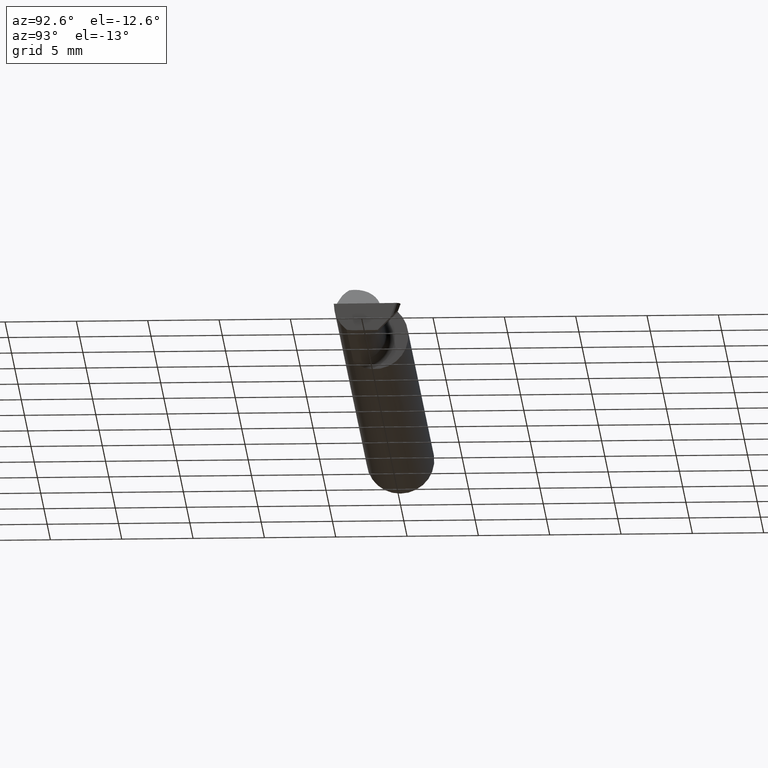
[diagram: clean part render]
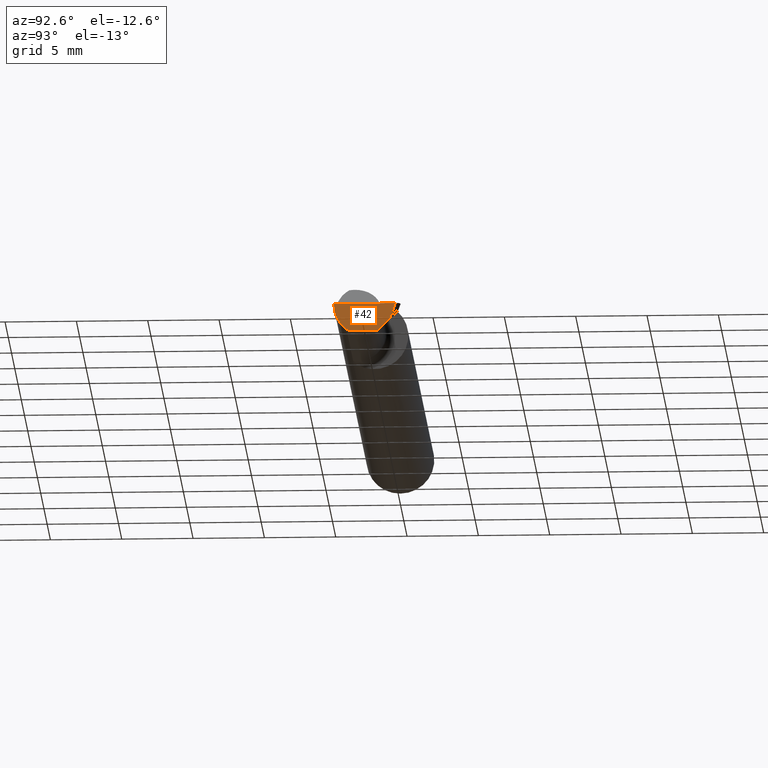
[diagram: same view with one face highlighted and labeled with its STEP entity id]
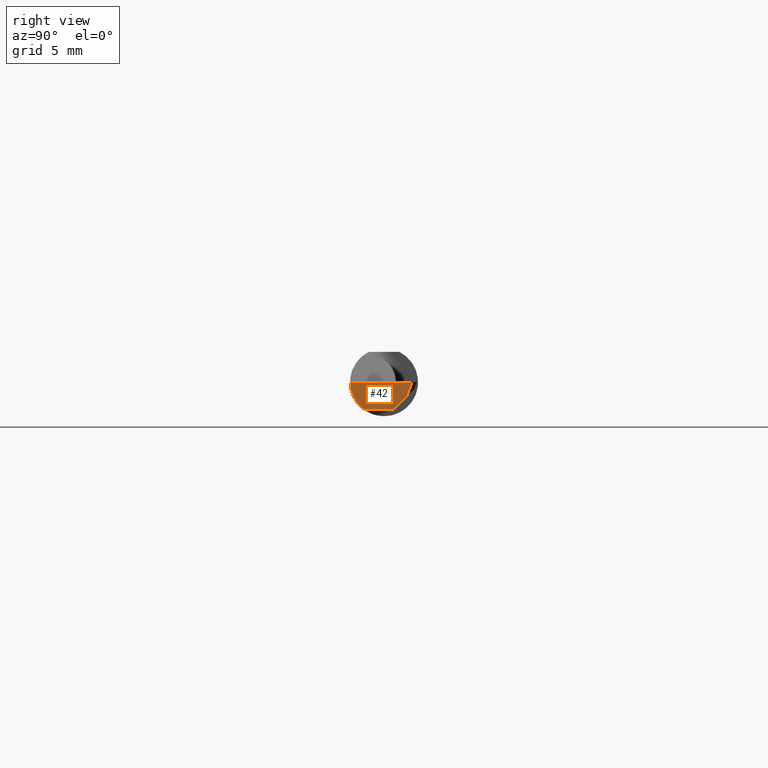
[diagram: same view with one face highlighted and labeled with its STEP entity id]
A machine part, auxiliary view. The second image highlights one B-rep face of the part: STEP entity #42.
A second angle (right view) of the same face is appended — the face is thin or edge-on in the first view.
In plain terms, the highlighted planar face has unit normal (-0.9992, 0.0174, 0.0349).
Its self-contained STEP definition (entity closure, byte-faithful):
#3 = AXIS2_PLACEMENT_3D ( 'NONE', #314, #685, #201 ) ;
#9 = FACE_OUTER_BOUND ( 'NONE', #390, .T. ) ;
#42 = ADVANCED_FACE ( 'NONE', ( #9 ), #551, .F. ) ;
#87 = CARTESIAN_POINT ( 'NONE',  ( 1.996507080450274474, 0.02748456554894273055, -0.07500000000000002498 ) ) ;
#99 = CARTESIAN_POINT ( 'NONE',  ( 1.995069675717878299, -0.05810704225352107677, -0.07337936794867833123 ) ) ;
#104 = CARTESIAN_POINT ( 'NONE',  ( 1.995192704155888785, -0.04781600192481515188, -0.07500000000000003886 ) ) ;
#115 = CARTESIAN_POINT ( 'NONE',  ( 1.995069675717878299, -0.05810704225352107677, -0.07337936794867833123 ) ) ;
#126 = CARTESIAN_POINT ( 'NONE',  ( 1.999998056073120534, 0.07741385304294044756, 0.000000000000000000 ) ) ;
#133 = VECTOR ( 'NONE', #671, 39.37007874015747433 ) ;
#159 = CARTESIAN_POINT ( 'NONE',  ( 1.999986840374342822, 0.07677130609030106967, 0.000000000000000000 ) ) ;
#169 = CARTESIAN_POINT ( 'NONE',  ( 1.995283749808152374, -0.04259999999999980469, -0.07500000000000002498 ) ) ;
#171 = ORIENTED_EDGE ( 'NONE', *, *, #320, .F. ) ;
#182 = EDGE_CURVE ( 'NONE', #543, #346, #209, .T. ) ;
#194 = LINE ( 'NONE', #739, #681 ) ;
#197 = CARTESIAN_POINT ( 'NONE',  ( 1.997012998164632958, -0.09360000000000001652, 0.000000000000000000 ) ) ;
#200 = CARTESIAN_POINT ( 'NONE',  ( 1.995996405735428469, -0.09359999999999997489, -0.02910696448121681199 ) ) ;
#201 = DIRECTION ( 'NONE',  ( 0.03490480639812536257, 0.000000000000000000, 0.9993906415863165194 ) ) ;
#209 = LINE ( 'NONE', #588, #733 ) ;
#210 = VERTEX_POINT ( 'NONE', #766 ) ;
#223 = CARTESIAN_POINT ( 'NONE',  ( 1.996701111497402481, 0.03118878038446752654, -0.07129578516447518388 ) ) ;
#247 = EDGE_CURVE ( 'NONE', #805, #346, #552, .T. ) ;
#270 = VERTEX_POINT ( 'NONE', #159 ) ;
#295 = VECTOR ( 'NONE', #781, 39.37007874015748143 ) ;
#302 =( BOUNDED_CURVE ( )  B_SPLINE_CURVE ( 3, ( #753, #750, #200, #197 ),
 .UNSPECIFIED., .F., .F. ) 
 B_SPLINE_CURVE_WITH_KNOTS ( ( 4, 4 ),
 ( 0.2063001339125776490, 1.107331509589607910 ),
 .UNSPECIFIED. ) 
 CURVE ( )  GEOMETRIC_REPRESENTATION_ITEM ( )  RATIONAL_B_SPLINE_CURVE ( ( 1.000000000000000000, 0.9334817841311873199, 0.9334817841311873199, 1.000000000000000000 ) ) 
 REPRESENTATION_ITEM ( '' )  );
#305 = LINE ( 'NONE', #126, #133 ) ;
#314 = CARTESIAN_POINT ( 'NONE',  ( 1.999998056073120534, 0.07741385304294044756, 0.000000000000000000 ) ) ;
#320 = EDGE_CURVE ( 'NONE', #210, #543, #716, .T. ) ;
#330 = ORIENTED_EDGE ( 'NONE', *, *, #495, .T. ) ;
#346 = VERTEX_POINT ( 'NONE', #169 ) ;
#390 = EDGE_LOOP ( 'NONE', ( #171, #330, #694, #477, #397, #524 ) ) ;
#397 = ORIENTED_EDGE ( 'NONE', *, *, #247, .T. ) ;
#461 = DIRECTION ( 'NONE',  ( -0.01745240643727441823, -0.9998476951563912696, 0.000000000000000000 ) ) ;
#474 = EDGE_CURVE ( 'NONE', #270, #585, #305, .T. ) ;
#477 = ORIENTED_EDGE ( 'NONE', *, *, #600, .F. ) ;
#495 = EDGE_CURVE ( 'NONE', #210, #270, #194, .T. ) ;
#496 = CARTESIAN_POINT ( 'NONE',  ( 1.997012998164632958, -0.09360000000000001652, 0.000000000000000000 ) ) ;
#524 = ORIENTED_EDGE ( 'NONE', *, *, #182, .F. ) ;
#543 = VERTEX_POINT ( 'NONE', #87 ) ;
#551 = PLANE ( 'NONE',  #3 ) ;
#552 =( BOUNDED_CURVE ( )  B_SPLINE_CURVE ( 3, ( #99, #647, #104, #596 ),
 .UNSPECIFIED., .F., .F. ) 
 B_SPLINE_CURVE_WITH_KNOTS ( ( 4, 4 ),
 ( 0.2552020043920334436, 0.4634648172052922011 ),
 .UNSPECIFIED. ) 
 CURVE ( )  GEOMETRIC_REPRESENTATION_ITEM ( )  RATIONAL_B_SPLINE_CURVE ( ( 1.000000000000000000, 0.9963888149483994816, 0.9963888149483994816, 1.000000000000000000 ) ) 
 REPRESENTATION_ITEM ( '' )  );
#556 = DIRECTION ( 'NONE',  ( 0.03876062227022269990, 0.3417631236437463915, 0.9389864650134709390 ) ) ;
#585 = VERTEX_POINT ( 'NONE', #496 ) ;
#588 = CARTESIAN_POINT ( 'NONE',  ( 1.995320483157157598, -0.04049554784491230658, -0.07500000000000002498 ) ) ;
#596 = CARTESIAN_POINT ( 'NONE',  ( 1.995283749808152374, -0.04259999999999980469, -0.07500000000000002498 ) ) ;
#600 = EDGE_CURVE ( 'NONE', #805, #585, #302, .T. ) ;
#647 = CARTESIAN_POINT ( 'NONE',  ( 1.995121087504817758, -0.05300374992736050367, -0.07445783144524575903 ) ) ;
#671 = DIRECTION ( 'NONE',  ( -0.01745240643727442170, -0.9998476951563914916, 0.000000000000000000 ) ) ;
#681 = VECTOR ( 'NONE', #556, 39.37007874015748854 ) ;
#685 = DIRECTION ( 'NONE',  ( -0.9992386149554827179, 0.01744177490282107154, 0.03489949670250104552 ) ) ;
#694 = ORIENTED_EDGE ( 'NONE', *, *, #474, .T. ) ;
#716 = LINE ( 'NONE', #223, #295 ) ;
#733 = VECTOR ( 'NONE', #461, 39.37007874015748854 ) ;
#739 = CARTESIAN_POINT ( 'NONE',  ( 1.999995369012866231, 0.07684650545427940127, 0.0002066085544878474808 ) ) ;
#750 = CARTESIAN_POINT ( 'NONE',  ( 1.995302472377616931, -0.08092595952420823802, -0.05530971394246245870 ) ) ;
#753 = CARTESIAN_POINT ( 'NONE',  ( 1.995069675717878299, -0.05810704225352107677, -0.07337936794867833123 ) ) ;
#766 = CARTESIAN_POINT ( 'NONE',  ( 1.998318014211375448, 0.06205680439066463272, -0.04042776115827773770 ) ) ;
#781 = DIRECTION ( 'NONE',  ( -0.03701368837992301264, -0.7066222423871552083, -0.7066222423871628688 ) ) ;
#805 = VERTEX_POINT ( 'NONE', #115 ) ;